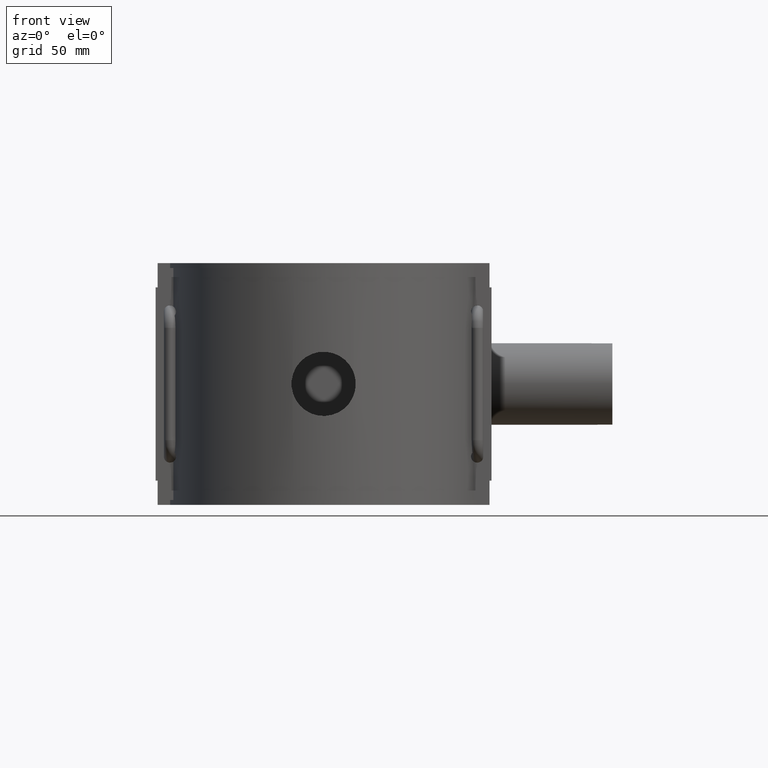
[diagram: clean part render]
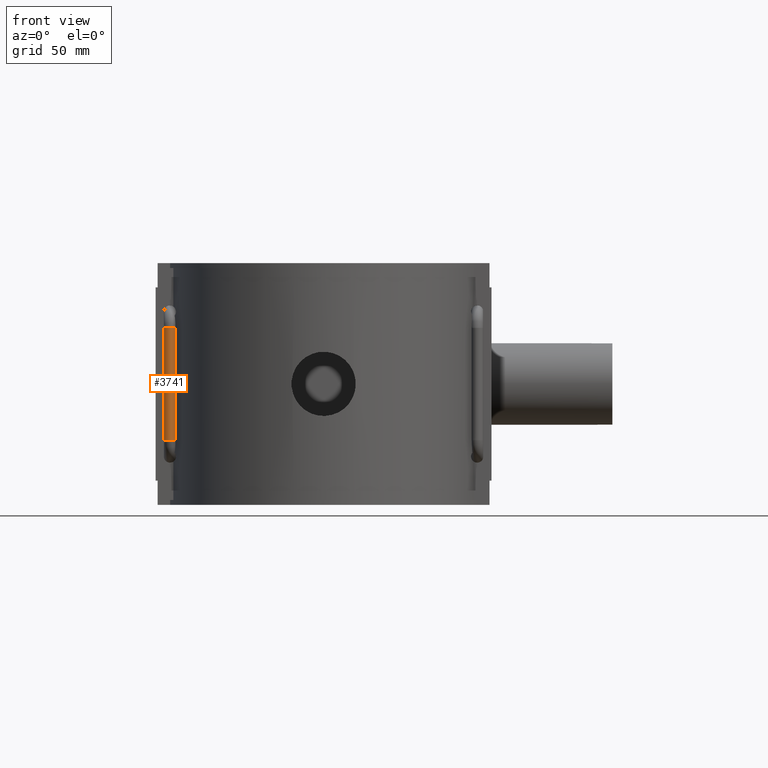
[diagram: same view with one face highlighted and labeled with its STEP entity id]
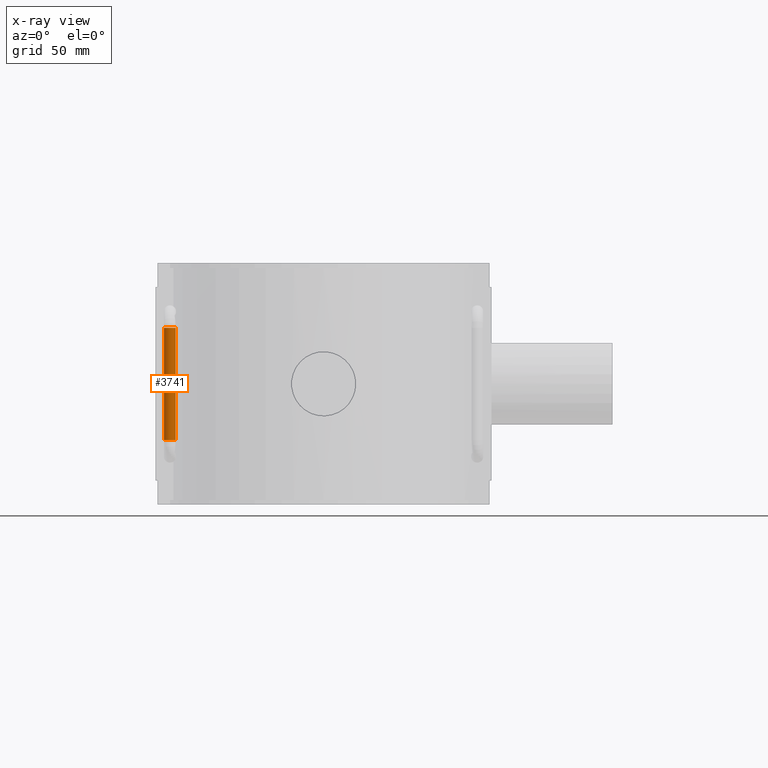
[diagram: x-ray of the same camera — body ghosted, the highlighted face saturated]
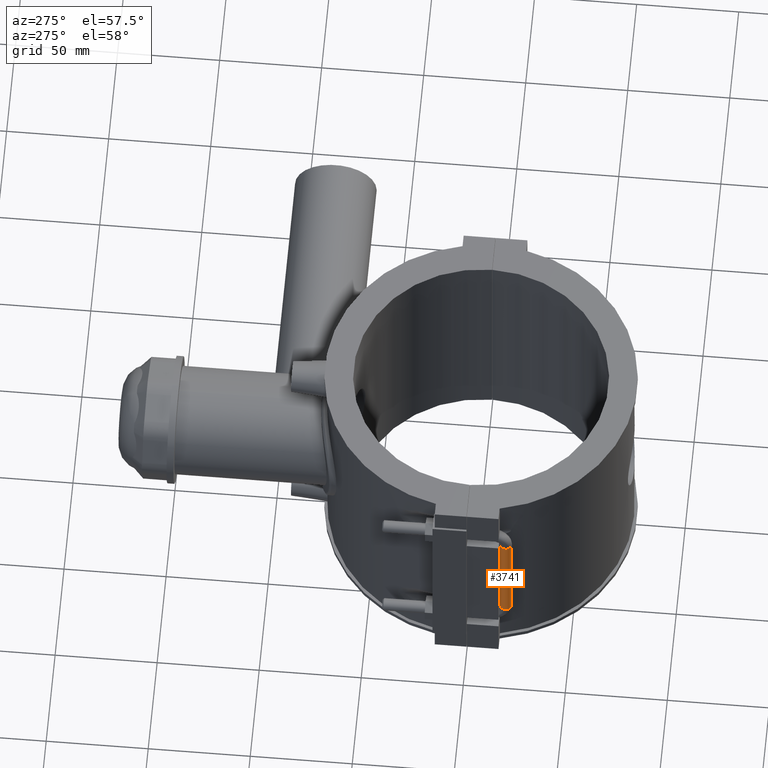
[diagram: same view with one face highlighted and labeled with its STEP entity id]
A machine part, front view. The second image highlights one B-rep face of the part: STEP entity #3741.
The next image is the same camera in x-ray: the body ghosted, the highlighted face saturated — about 0% of this face is hidden behind the body in this view.
A second angle (auxiliary view) of the same face is appended — the face is thin or edge-on in the first view.
In plain terms, the highlighted cylindrical surface (edge-blend (fillet) strip) has radius 3 mm, axis along (0, 0, 1).
Its self-contained STEP definition (entity closure, byte-faithful):
#155=LINE('',#6826,#454);
#241=LINE('',#7542,#540);
#454=VECTOR('',#4524,54.7999999999999);
#540=VECTOR('',#4744,54.7999999999999);
#857=CIRCLE('',#4020,3.);
#859=CIRCLE('',#4024,3.);
#1087=FACE_OUTER_BOUND('',#1340,.T.);
#1340=EDGE_LOOP('',(#3094,#3095,#3096,#3097));
#1734=VERTEX_POINT('',#6818);
#1735=VERTEX_POINT('',#6825);
#1818=VERTEX_POINT('',#7395);
#1826=VERTEX_POINT('',#7475);
#2160=EDGE_CURVE('',#1734,#1735,#155,.T.);
#2283=EDGE_CURVE('',#1818,#1735,#857,.T.);
#2288=EDGE_CURVE('',#1826,#1734,#859,.T.);
#2296=EDGE_CURVE('',#1818,#1826,#241,.T.);
#3094=ORIENTED_EDGE('',*,*,#2296,.F.);
#3095=ORIENTED_EDGE('',*,*,#2283,.T.);
#3096=ORIENTED_EDGE('',*,*,#2160,.F.);
#3097=ORIENTED_EDGE('',*,*,#2288,.F.);
#3585=CYLINDRICAL_SURFACE('',#4027,3.);
#3741=ADVANCED_FACE('',(#1087),#3585,.T.);
#4020=AXIS2_PLACEMENT_3D('',#7457,#4728,#4729);
#4024=AXIS2_PLACEMENT_3D('',#7487,#4736,#4737);
#4027=AXIS2_PLACEMENT_3D('',#7541,#4742,#4743);
#4524=DIRECTION('',(0.,0.,-1.));
#4728=DIRECTION('center_axis',(0.,6.12323399573677E-17,1.));
#4729=DIRECTION('ref_axis',(1.,0.,0.));
#4736=DIRECTION('center_axis',(0.,6.12323399573677E-17,1.));
#4737=DIRECTION('ref_axis',(1.,0.,0.));
#4742=DIRECTION('center_axis',(0.,0.,1.));
#4743=DIRECTION('ref_axis',(1.,0.,0.));
#4744=DIRECTION('',(0.,0.,1.));
#6818=CARTESIAN_POINT('',(-72.3017579987008,-19.9362932938224,27.3999999999999));
#6825=CARTESIAN_POINT('',(-72.3017579987008,-19.9362932938224,-27.4));
#6826=CARTESIAN_POINT('',(-72.3017579987008,-19.9362932938224,27.3999999999999));
#7395=CARTESIAN_POINT('',(-75.,-15.625,-27.4));
#7457=CARTESIAN_POINT('Origin',(-75.,-18.6249999999995,-27.4));
#7475=CARTESIAN_POINT('',(-75.,-15.625,27.3999999999999));
#7487=CARTESIAN_POINT('Origin',(-75.,-18.6249999999995,27.3999999999999));
#7541=CARTESIAN_POINT('Origin',(-75.,-18.6249999999995,27.3999999999999));
#7542=CARTESIAN_POINT('',(-75.,-15.625,27.3999999999999));